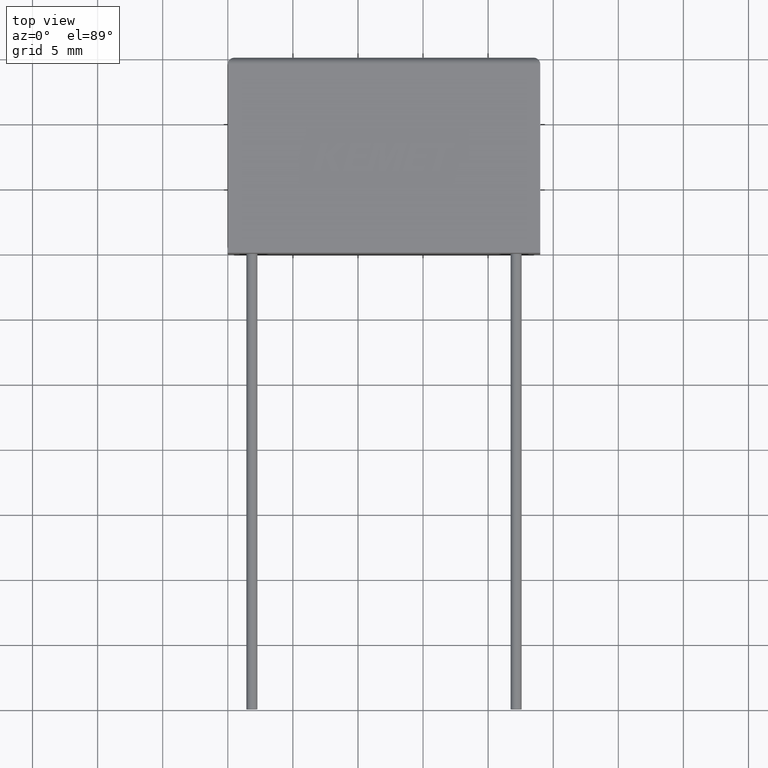
[diagram: clean part render]
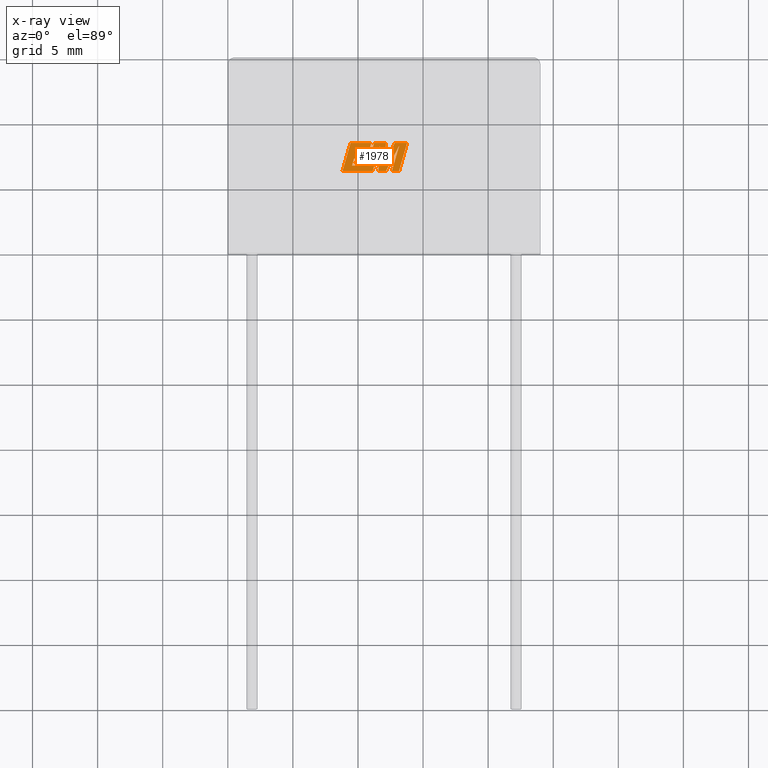
[diagram: x-ray — body ghosted, one internal face saturated and labeled with its STEP entity id]
A machine part, top view, then the same camera in x-ray: the body is ghosted and one INTERNAL B-rep face — a face not visible from any outside direction — is saturated and labeled: STEP entity #1978.
In plain terms, the highlighted planar face has unit normal (0, 0, -1).
Its self-contained STEP definition (entity closure, byte-faithful):
#11 = DIRECTION ( 'NONE',  ( 1.000000000000000000, 0.0000000000000000000, 0.0000000000000000000 ) ) ;
#69 = EDGE_CURVE ( 'NONE', #2153, #154, #183, .T. ) ;
#72 = LINE ( 'NONE', #2041, #699 ) ;
#79 = CARTESIAN_POINT ( 'NONE',  ( 10.62045664959350900, 7.233144041955564600, 9.000000000000000000 ) ) ;
#80 = EDGE_CURVE ( 'NONE', #2426, #1579, #1411, .T. ) ;
#83 = ORIENTED_EDGE ( 'NONE', *, *, #1058, .F. ) ;
#132 = CARTESIAN_POINT ( 'NONE',  ( 12.14838708525922700, 6.289499999999999400, 9.000000000000000000 ) ) ;
#149 = DIRECTION ( 'NONE',  ( 1.000000000000000000, 0.0000000000000000000, 0.0000000000000000000 ) ) ;
#154 = VERTEX_POINT ( 'NONE', #1682 ) ;
#173 = LINE ( 'NONE', #1880, #1406 ) ;
#183 = LINE ( 'NONE', #1328, #432 ) ;
#196 = DIRECTION ( 'NONE',  ( 1.000000000000000000, 0.0000000000000000000, 0.0000000000000000000 ) ) ;
#197 = CARTESIAN_POINT ( 'NONE',  ( 10.62045664959350900, 7.233144041955564600, 9.000000000000000000 ) ) ;
#201 = EDGE_LOOP ( 'NONE', ( #1407, #300, #608, #1550, #2274, #2483, #2241, #2286, #1708, #1077, #1888, #721, #978, #1185, #508, #2279, #795, #559, #83, #656, #2456, #1582, #450 ) ) ;
#206 = EDGE_CURVE ( 'NONE', #388, #912, #2163, .T. ) ;
#210 = VECTOR ( 'NONE', #1630, 1000.000000000000000 ) ;
#257 = CARTESIAN_POINT ( 'NONE',  ( 11.68238478015423700, 8.204088436449806600, 9.000000000000000000 ) ) ;
#265 = DIRECTION ( 'NONE',  ( -0.2760118818968581000, -0.9611542233438683500, 0.0000000000000000000 ) ) ;
#268 = VERTEX_POINT ( 'NONE', #1722 ) ;
#272 = VECTOR ( 'NONE', #1596, 1000.000000000000100 ) ;
#277 = VECTOR ( 'NONE', #149, 1000.000000000000000 ) ;
#281 = CARTESIAN_POINT ( 'NONE',  ( 13.16397327778773800, 8.213308435746613500, 9.000000000000000000 ) ) ;
#295 = VERTEX_POINT ( 'NONE', #2312 ) ;
#300 = ORIENTED_EDGE ( 'NONE', *, *, #2179, .F. ) ;
#308 = LINE ( 'NONE', #1692, #2162 ) ;
#317 = CARTESIAN_POINT ( 'NONE',  ( 13.16397327778773800, 8.213308435746613500, 9.000000000000000000 ) ) ;
#381 = CARTESIAN_POINT ( 'NONE',  ( 10.73740024356318100, 6.698645642751768200, 9.000000000000000000 ) ) ;
#385 = CARTESIAN_POINT ( 'NONE',  ( 13.15800970377181800, 6.289499999999999400, 9.000000000000000000 ) ) ;
#388 = VERTEX_POINT ( 'NONE', #456 ) ;
#396 = DIRECTION ( 'NONE',  ( 0.2763139702539114100, 0.9610674221107072800, 0.0000000000000000000 ) ) ;
#405 = CARTESIAN_POINT ( 'NONE',  ( 9.434679732383630200, 8.440061567497705800, 9.000000000000000000 ) ) ;
#406 = EDGE_CURVE ( 'NONE', #2481, #388, #1486, .T. ) ;
#412 = CARTESIAN_POINT ( 'NONE',  ( 9.545247794913541000, 6.698645642751768200, 9.000000000000000000 ) ) ;
#425 = VECTOR ( 'NONE', #1201, 1000.000000000000000 ) ;
#432 = VECTOR ( 'NONE', #1878, 1000.000000000000000 ) ;
#445 = CARTESIAN_POINT ( 'NONE',  ( 9.545247794913541000, 6.698645642751768200, 9.000000000000000000 ) ) ;
#450 = ORIENTED_EDGE ( 'NONE', *, *, #846, .F. ) ;
#456 = CARTESIAN_POINT ( 'NONE',  ( 11.23794812053024300, 8.440061567497705800, 9.000000000000000000 ) ) ;
#496 = LINE ( 'NONE', #1736, #1454 ) ;
#501 = DIRECTION ( 'NONE',  ( 0.2759782365590722800, 0.9611638845408958500, 0.0000000000000000000 ) ) ;
#505 = EDGE_CURVE ( 'NONE', #268, #1409, #2232, .T. ) ;
#508 = ORIENTED_EDGE ( 'NONE', *, *, #69, .F. ) ;
#535 = DIRECTION ( 'NONE',  ( 0.0000000000000000000, 0.0000000000000000000, -1.000000000000000000 ) ) ;
#559 = ORIENTED_EDGE ( 'NONE', *, *, #1830, .F. ) ;
#562 = CARTESIAN_POINT ( 'NONE',  ( 12.83309033457769000, 8.440061567497705800, 9.000000000000000000 ) ) ;
#600 = EDGE_CURVE ( 'NONE', #1608, #1789, #72, .T. ) ;
#608 = ORIENTED_EDGE ( 'NONE', *, *, #1278, .F. ) ;
#622 = CARTESIAN_POINT ( 'NONE',  ( 10.73740024356318100, 6.698645642751768200, 9.000000000000000000 ) ) ;
#623 = VERTEX_POINT ( 'NONE', #132 ) ;
#635 = CARTESIAN_POINT ( 'NONE',  ( 11.13265049557882900, 6.289499999999998500, 9.000000000000000000 ) ) ;
#646 = EDGE_CURVE ( 'NONE', #803, #2091, #2262, .T. ) ;
#656 = ORIENTED_EDGE ( 'NONE', *, *, #206, .F. ) ;
#672 = EDGE_CURVE ( 'NONE', #1579, #803, #496, .T. ) ;
#673 = CARTESIAN_POINT ( 'NONE',  ( 12.61151876646890100, 6.289499999999998500, 9.000000000000000000 ) ) ;
#699 = VECTOR ( 'NONE', #1089, 1000.000000000000100 ) ;
#700 = CARTESIAN_POINT ( 'NONE',  ( 12.14838708525922700, 6.289499999999999400, 9.000000000000000000 ) ) ;
#721 = ORIENTED_EDGE ( 'NONE', *, *, #672, .F. ) ;
#737 = CARTESIAN_POINT ( 'NONE',  ( 11.02344254813588800, 8.440061567497705800, 9.000000000000000000 ) ) ;
#751 = VECTOR ( 'NONE', #11, 1000.000000000000000 ) ;
#777 = CARTESIAN_POINT ( 'NONE',  ( 10.90717901084580400, 8.030713215545429100, 9.000000000000000000 ) ) ;
#795 = ORIENTED_EDGE ( 'NONE', *, *, #1527, .F. ) ;
#803 = VERTEX_POINT ( 'NONE', #1044 ) ;
#817 = CARTESIAN_POINT ( 'NONE',  ( 12.15379620799092400, 8.440061567497705800, 9.000000000000000000 ) ) ;
#823 = CARTESIAN_POINT ( 'NONE',  ( 9.697541258551613200, 7.233144041955564600, 9.000000000000000000 ) ) ;
#841 = VECTOR ( 'NONE', #1573, 1000.000000000000000 ) ;
#844 = EDGE_CURVE ( 'NONE', #1826, #2153, #1563, .T. ) ;
#846 = EDGE_CURVE ( 'NONE', #1277, #1378, #1258, .T. ) ;
#865 = VECTOR ( 'NONE', #396, 1000.000000000000100 ) ;
#912 = VERTEX_POINT ( 'NONE', #381 ) ;
#921 = CARTESIAN_POINT ( 'NONE',  ( 0.03254324761736357400, 0.8536266908722974800, 9.000000000000000000 ) ) ;
#929 = CARTESIAN_POINT ( 'NONE',  ( 11.13265049557882900, 6.289499999999998500, 9.000000000000000000 ) ) ;
#936 = VERTEX_POINT ( 'NONE', #1124 ) ;
#978 = ORIENTED_EDGE ( 'NONE', *, *, #80, .F. ) ;
#981 = LINE ( 'NONE', #2104, #751 ) ;
#988 = VECTOR ( 'NONE', #2154, 1000.000000000000000 ) ;
#1010 = CARTESIAN_POINT ( 'NONE',  ( 12.07109175963770500, 6.903672752351330800, 9.000000000000000000 ) ) ;
#1018 = EDGE_CURVE ( 'NONE', #154, #2426, #1356, .T. ) ;
#1034 = CARTESIAN_POINT ( 'NONE',  ( 12.15379620799092400, 8.440061567497705800, 9.000000000000000000 ) ) ;
#1040 = LINE ( 'NONE', #1010, #425 ) ;
#1044 = CARTESIAN_POINT ( 'NONE',  ( 11.02344254813588800, 8.440061567497705800, 9.000000000000000000 ) ) ;
#1058 = EDGE_CURVE ( 'NONE', #912, #2375, #1509, .T. ) ;
#1074 = LINE ( 'NONE', #635, #1276 ) ;
#1077 = ORIENTED_EDGE ( 'NONE', *, *, #1365, .F. ) ;
#1084 = VECTOR ( 'NONE', #265, 1000.000000000000100 ) ;
#1089 = DIRECTION ( 'NONE',  ( -0.05596501978069497200, -0.9984327301130238000, 0.0000000000000000000 ) ) ;
#1112 = PLANE ( 'NONE',  #2355 ) ;
#1115 = VECTOR ( 'NONE', #1783, 1000.000000000000000 ) ;
#1119 = DIRECTION ( 'NONE',  ( -0.4443210308329522100, -0.8958676361826799500, 0.0000000000000000000 ) ) ;
#1124 = CARTESIAN_POINT ( 'NONE',  ( 12.61151876646890100, 6.289499999999998500, 9.000000000000000000 ) ) ;
#1185 = ORIENTED_EDGE ( 'NONE', *, *, #1018, .F. ) ;
#1191 = DIRECTION ( 'NONE',  ( 0.2732148821746286900, 0.9619530280415482500, 0.0000000000000000000 ) ) ;
#1201 = DIRECTION ( 'NONE',  ( 0.05375259206908614100, 0.9985542843760946100, 0.0000000000000000000 ) ) ;
#1206 = EDGE_CURVE ( 'NONE', #1304, #936, #1507, .T. ) ;
#1258 = LINE ( 'NONE', #562, #1287 ) ;
#1276 = VECTOR ( 'NONE', #501, 1000.000000000000200 ) ;
#1277 = VERTEX_POINT ( 'NONE', #2230 ) ;
#1278 = EDGE_CURVE ( 'NONE', #936, #2214, #2043, .T. ) ;
#1287 = VECTOR ( 'NONE', #1119, 1000.000000000000100 ) ;
#1304 = VERTEX_POINT ( 'NONE', #317 ) ;
#1318 = CARTESIAN_POINT ( 'NONE',  ( 11.23794812053024300, 8.440061567497705800, 9.000000000000000000 ) ) ;
#1320 = CARTESIAN_POINT ( 'NONE',  ( 11.57506660389045000, 6.289499999999999400, 9.000000000000000000 ) ) ;
#1328 = CARTESIAN_POINT ( 'NONE',  ( 10.73401303815242800, 7.630709104020452200, 9.000000000000000000 ) ) ;
#1356 = LINE ( 'NONE', #1759, #841 ) ;
#1365 = EDGE_CURVE ( 'NONE', #2091, #268, #308, .T. ) ;
#1374 = LINE ( 'NONE', #700, #2185 ) ;
#1378 = VERTEX_POINT ( 'NONE', #1697 ) ;
#1406 = VECTOR ( 'NONE', #1481, 1000.000000000000000 ) ;
#1407 = ORIENTED_EDGE ( 'NONE', *, *, #1991, .F. ) ;
#1409 = VERTEX_POINT ( 'NONE', #929 ) ;
#1411 = LINE ( 'NONE', #2102, #277 ) ;
#1423 = CARTESIAN_POINT ( 'NONE',  ( 9.927361184400503200, 8.030713215545429100, 9.000000000000000000 ) ) ;
#1448 = VECTOR ( 'NONE', #2083, 1000.000000000000100 ) ;
#1454 = VECTOR ( 'NONE', #1191, 1000.000000000000100 ) ;
#1481 = DIRECTION ( 'NONE',  ( -1.000000000000000000, 0.0000000000000000000, 0.0000000000000000000 ) ) ;
#1486 = LINE ( 'NONE', #817, #1115 ) ;
#1507 = LINE ( 'NONE', #281, #1084 ) ;
#1509 = LINE ( 'NONE', #622, #988 ) ;
#1513 = DIRECTION ( 'NONE',  ( 0.2746459304916890600, 0.9615454294334481200, 0.0000000000000000000 ) ) ;
#1527 = EDGE_CURVE ( 'NONE', #1699, #1826, #981, .T. ) ;
#1550 = ORIENTED_EDGE ( 'NONE', *, *, #1206, .F. ) ;
#1563 = LINE ( 'NONE', #197, #1620 ) ;
#1573 = DIRECTION ( 'NONE',  ( 0.2793947940878305800, 0.9601763114327591700, 0.0000000000000000000 ) ) ;
#1579 = VERTEX_POINT ( 'NONE', #777 ) ;
#1582 = ORIENTED_EDGE ( 'NONE', *, *, #1700, .F. ) ;
#1596 = DIRECTION ( 'NONE',  ( 0.2740217765954059400, 0.9617234872620598100, 0.0000000000000000000 ) ) ;
#1608 = VERTEX_POINT ( 'NONE', #257 ) ;
#1616 = CARTESIAN_POINT ( 'NONE',  ( 10.74985704941476600, 6.289499999999999400, 9.000000000000000000 ) ) ;
#1620 = VECTOR ( 'NONE', #1513, 1000.000000000000200 ) ;
#1630 = DIRECTION ( 'NONE',  ( 1.000000000000000000, 1.410797975395186900E-015, 0.0000000000000000000 ) ) ;
#1633 = CARTESIAN_POINT ( 'NONE',  ( 11.57506660389045000, 6.289499999999999400, 9.000000000000000000 ) ) ;
#1682 = CARTESIAN_POINT ( 'NONE',  ( 9.810966866978692000, 7.630709104020452200, 9.000000000000000000 ) ) ;
#1692 = CARTESIAN_POINT ( 'NONE',  ( 9.434679732383630200, 8.440061567497705800, 9.000000000000000000 ) ) ;
#1697 = CARTESIAN_POINT ( 'NONE',  ( 12.07109175963770500, 6.903672752351330800, 9.000000000000000000 ) ) ;
#1699 = VERTEX_POINT ( 'NONE', #823 ) ;
#1700 = EDGE_CURVE ( 'NONE', #1378, #2481, #1040, .T. ) ;
#1708 = ORIENTED_EDGE ( 'NONE', *, *, #505, .F. ) ;
#1718 = VECTOR ( 'NONE', #2420, 1000.000000000000000 ) ;
#1722 = CARTESIAN_POINT ( 'NONE',  ( 8.815834685362881700, 6.289499999999998500, 9.000000000000000000 ) ) ;
#1736 = CARTESIAN_POINT ( 'NONE',  ( 10.90717901084580400, 8.030713215545429100, 9.000000000000000000 ) ) ;
#1759 = CARTESIAN_POINT ( 'NONE',  ( 9.810966866978692000, 7.630709104020452200, 9.000000000000000000 ) ) ;
#1776 = VECTOR ( 'NONE', #196, 1000.000000000000000 ) ;
#1783 = DIRECTION ( 'NONE',  ( -1.000000000000000000, 0.0000000000000000000, 0.0000000000000000000 ) ) ;
#1789 = VERTEX_POINT ( 'NONE', #1633 ) ;
#1810 = EDGE_CURVE ( 'NONE', #623, #1304, #1374, .T. ) ;
#1821 = FACE_OUTER_BOUND ( 'NONE', #201, .T. ) ;
#1826 = VERTEX_POINT ( 'NONE', #79 ) ;
#1830 = EDGE_CURVE ( 'NONE', #2375, #1699, #2371, .T. ) ;
#1832 = EDGE_CURVE ( 'NONE', #1409, #1608, #1074, .T. ) ;
#1878 = DIRECTION ( 'NONE',  ( -1.000000000000000000, 0.0000000000000000000, 0.0000000000000000000 ) ) ;
#1880 = CARTESIAN_POINT ( 'NONE',  ( 13.77631201151804200, 8.440061567497705800, 9.000000000000000000 ) ) ;
#1888 = ORIENTED_EDGE ( 'NONE', *, *, #646, .F. ) ;
#1911 = CARTESIAN_POINT ( 'NONE',  ( 13.15800970377181800, 6.289499999999999400, 9.000000000000000000 ) ) ;
#1978 = ADVANCED_FACE ( 'NONE', ( #1821 ), #1112, .T. ) ;
#1991 = EDGE_CURVE ( 'NONE', #295, #1277, #173, .T. ) ;
#2019 = DIRECTION ( 'NONE',  ( 1.000000000000000000, -2.014110522645507600E-015, 0.0000000000000000000 ) ) ;
#2041 = CARTESIAN_POINT ( 'NONE',  ( 11.68238478015423700, 8.204088436449806600, 9.000000000000000000 ) ) ;
#2043 = LINE ( 'NONE', #673, #210 ) ;
#2059 = EDGE_CURVE ( 'NONE', #1789, #623, #2292, .T. ) ;
#2083 = DIRECTION ( 'NONE',  ( -0.2762517575166415500, -0.9610853065513833600, 0.0000000000000000000 ) ) ;
#2091 = VERTEX_POINT ( 'NONE', #405 ) ;
#2094 = CARTESIAN_POINT ( 'NONE',  ( 10.73401303815242800, 7.630709104020452200, 9.000000000000000000 ) ) ;
#2102 = CARTESIAN_POINT ( 'NONE',  ( 9.927361184400503200, 8.030713215545429100, 9.000000000000000000 ) ) ;
#2104 = CARTESIAN_POINT ( 'NONE',  ( 9.697541258551613200, 7.233144041955564600, 9.000000000000000000 ) ) ;
#2108 = LINE ( 'NONE', #1911, #865 ) ;
#2139 = DIRECTION ( 'NONE',  ( 0.4668459304955088200, 0.8843386665637675800, 0.0000000000000000000 ) ) ;
#2153 = VERTEX_POINT ( 'NONE', #2094 ) ;
#2154 = DIRECTION ( 'NONE',  ( -1.000000000000000000, 0.0000000000000000000, 0.0000000000000000000 ) ) ;
#2162 = VECTOR ( 'NONE', #2245, 1000.000000000000100 ) ;
#2163 = LINE ( 'NONE', #1318, #1448 ) ;
#2179 = EDGE_CURVE ( 'NONE', #2214, #295, #2108, .T. ) ;
#2185 = VECTOR ( 'NONE', #2139, 1000.000000000000000 ) ;
#2214 = VERTEX_POINT ( 'NONE', #385 ) ;
#2230 = CARTESIAN_POINT ( 'NONE',  ( 12.83309033457769000, 8.440061567497705800, 9.000000000000000000 ) ) ;
#2232 = LINE ( 'NONE', #1616, #2413 ) ;
#2241 = ORIENTED_EDGE ( 'NONE', *, *, #600, .F. ) ;
#2245 = DIRECTION ( 'NONE',  ( -0.2765379750249970500, -0.9610029908221274800, 0.0000000000000000000 ) ) ;
#2262 = LINE ( 'NONE', #737, #1718 ) ;
#2274 = ORIENTED_EDGE ( 'NONE', *, *, #1810, .F. ) ;
#2279 = ORIENTED_EDGE ( 'NONE', *, *, #844, .F. ) ;
#2286 = ORIENTED_EDGE ( 'NONE', *, *, #1832, .F. ) ;
#2292 = LINE ( 'NONE', #1320, #1776 ) ;
#2312 = CARTESIAN_POINT ( 'NONE',  ( 13.77631201151804200, 8.440061567497705800, 9.000000000000000000 ) ) ;
#2355 = AXIS2_PLACEMENT_3D ( 'NONE', #921, #535, #2454 ) ;
#2371 = LINE ( 'NONE', #445, #272 ) ;
#2375 = VERTEX_POINT ( 'NONE', #412 ) ;
#2413 = VECTOR ( 'NONE', #2019, 1000.000000000000000 ) ;
#2420 = DIRECTION ( 'NONE',  ( -1.000000000000000000, 0.0000000000000000000, 0.0000000000000000000 ) ) ;
#2426 = VERTEX_POINT ( 'NONE', #1423 ) ;
#2454 = DIRECTION ( 'NONE',  ( -1.000000000000000000, 0.0000000000000000000, 0.0000000000000000000 ) ) ;
#2456 = ORIENTED_EDGE ( 'NONE', *, *, #406, .F. ) ;
#2481 = VERTEX_POINT ( 'NONE', #1034 ) ;
#2483 = ORIENTED_EDGE ( 'NONE', *, *, #2059, .F. ) ;